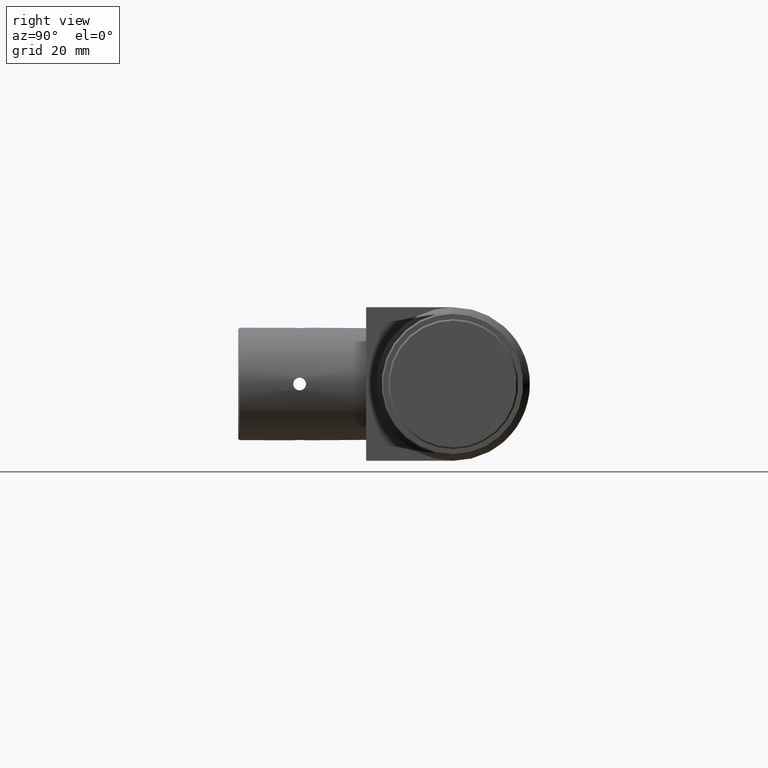
[diagram: clean part render]
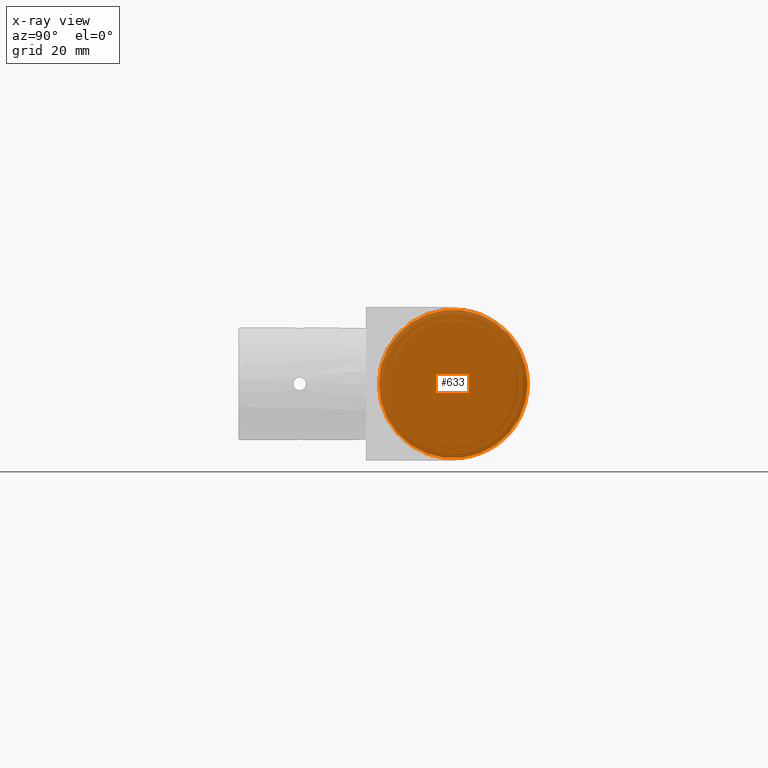
[diagram: x-ray — body ghosted, one internal face saturated and labeled with its STEP entity id]
A machine part, right view, then the same camera in x-ray: the body is ghosted and one INTERNAL B-rep face — a face not visible from any outside direction — is saturated and labeled: STEP entity #633.
In plain terms, the highlighted planar face has unit normal (-1, -0, -0).
Its self-contained STEP definition (entity closure, byte-faithful):
#49 = PLANE ( 'NONE',  #728 ) ;
#267 = DIRECTION ( 'NONE',  ( 1.000000000000000000, 2.465190328815661892E-32, 2.736911063134408342E-48 ) ) ;
#276 = CARTESIAN_POINT ( 'NONE',  ( 2.599999999999991207, 3.469446951953614189E-15, -2.775557561562891351E-14 ) ) ;
#430 = ORIENTED_EDGE ( 'NONE', *, *, #1136, .T. ) ;
#561 = DIRECTION ( 'NONE',  ( 0.000000000000000000, 1.000000000000000000, 1.318609258053554129E-16 ) ) ;
#633 = ADVANCED_FACE ( 'NONE', ( #989 ), #49, .F. ) ;
#635 = DIRECTION ( 'NONE',  ( -1.000000000000000000, -2.465190328815661892E-32, -2.736911063134408342E-48 ) ) ;
#728 = AXIS2_PLACEMENT_3D ( 'NONE', #1105, #635, #904 ) ;
#800 = EDGE_LOOP ( 'NONE', ( #430 ) ) ;
#850 = AXIS2_PLACEMENT_3D ( 'NONE', #276, #267, #561 ) ;
#904 = DIRECTION ( 'NONE',  ( -2.465190328815661892E-32, 1.000000000000000000, 1.318609258053555115E-16 ) ) ;
#989 = FACE_OUTER_BOUND ( 'NONE', #800, .T. ) ;
#1029 = CIRCLE ( 'NONE', #850, 14.53536256314270148 ) ;
#1086 = VERTEX_POINT ( 'NONE', #1186 ) ;
#1105 = CARTESIAN_POINT ( 'NONE',  ( 2.599999999999991207, 56.17486957814339377, 31.20951493132237431 ) ) ;
#1136 = EDGE_CURVE ( 'NONE', #1086, #1086, #1029, .T. ) ;
#1186 = CARTESIAN_POINT ( 'NONE',  ( 2.599999999999991207, 14.53536256314270503, -2.583892925113641302E-14 ) ) ;